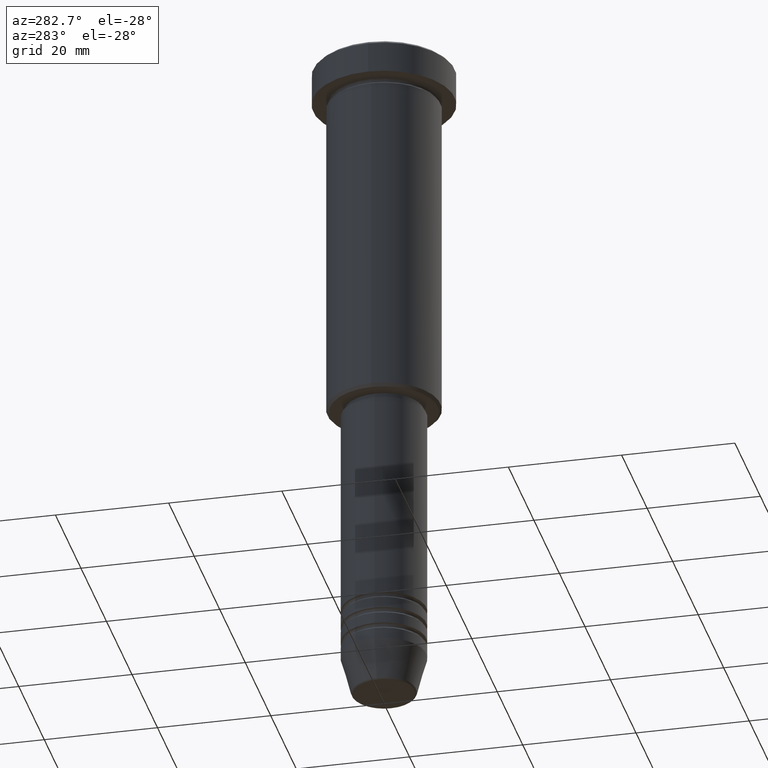
[diagram: clean part render]
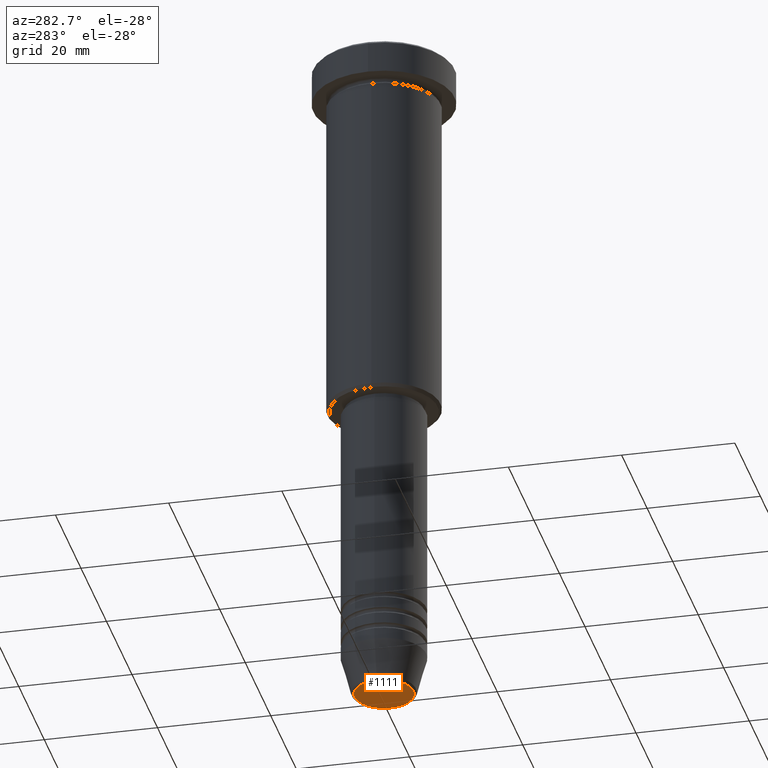
[diagram: same view with one face highlighted and labeled with its STEP entity id]
A machine part, auxiliary view. The second image highlights one B-rep face of the part: STEP entity #1111.
In plain terms, the highlighted planar face has unit normal (0, -0, 1).
Its self-contained STEP definition (entity closure, byte-faithful):
#40 = EDGE_CURVE ( 'NONE', #935, #113, #907, .T. ) ;
#113 = VERTEX_POINT ( 'NONE', #852 ) ;
#212 = DIRECTION ( 'NONE',  ( 0.000000000000000000, -0.000000000000000000, 1.000000000000000000 ) ) ;
#288 = CARTESIAN_POINT ( 'NONE',  ( 0.000000000000000000, 0.000000000000000000, -121.0000000000000142 ) ) ;
#311 = EDGE_LOOP ( 'NONE', ( #532, #957 ) ) ;
#319 = AXIS2_PLACEMENT_3D ( 'NONE', #1037, #212, #347 ) ;
#347 = DIRECTION ( 'NONE',  ( 1.000000000000000000, 0.000000000000000000, 0.000000000000000000 ) ) ;
#402 = CARTESIAN_POINT ( 'NONE',  ( 0.000000000000000000, 0.000000000000000000, -121.0000000000000142 ) ) ;
#408 = DIRECTION ( 'NONE',  ( 0.000000000000000000, 0.000000000000000000, -1.000000000000000000 ) ) ;
#448 = AXIS2_PLACEMENT_3D ( 'NONE', #402, #408, #570 ) ;
#522 = AXIS2_PLACEMENT_3D ( 'NONE', #288, #1177, #549 ) ;
#532 = ORIENTED_EDGE ( 'NONE', *, *, #1019, .T. ) ;
#549 = DIRECTION ( 'NONE',  ( 1.000000000000000000, 0.000000000000000000, 0.000000000000000000 ) ) ;
#570 = DIRECTION ( 'NONE',  ( 1.000000000000000000, 0.000000000000000000, 0.000000000000000000 ) ) ;
#681 = PLANE ( 'NONE',  #319 ) ;
#833 = CARTESIAN_POINT ( 'NONE',  ( -5.240692158992658278, 6.713726370671658459E-16, -121.0000000000000142 ) ) ;
#852 = CARTESIAN_POINT ( 'NONE',  ( 5.240692158992658278, 0.000000000000000000, -121.0000000000000142 ) ) ;
#907 = CIRCLE ( 'NONE', #522, 5.240692158992658278 ) ;
#935 = VERTEX_POINT ( 'NONE', #833 ) ;
#957 = ORIENTED_EDGE ( 'NONE', *, *, #40, .T. ) ;
#967 = CIRCLE ( 'NONE', #448, 5.240692158992658278 ) ;
#1019 = EDGE_CURVE ( 'NONE', #113, #935, #967, .T. ) ;
#1037 = CARTESIAN_POINT ( 'NONE',  ( 0.000000000000000000, 0.000000000000000000, -121.0000000000000142 ) ) ;
#1111 = ADVANCED_FACE ( 'NONE', ( #1124 ), #681, .F. ) ;
#1124 = FACE_OUTER_BOUND ( 'NONE', #311, .T. ) ;
#1177 = DIRECTION ( 'NONE',  ( 0.000000000000000000, 0.000000000000000000, -1.000000000000000000 ) ) ;